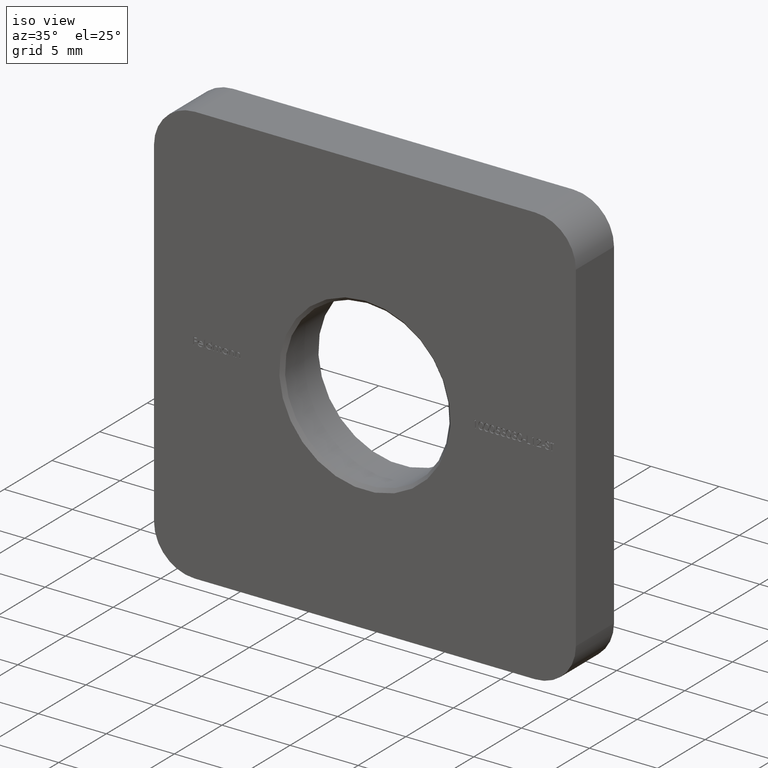
[diagram: clean part render]
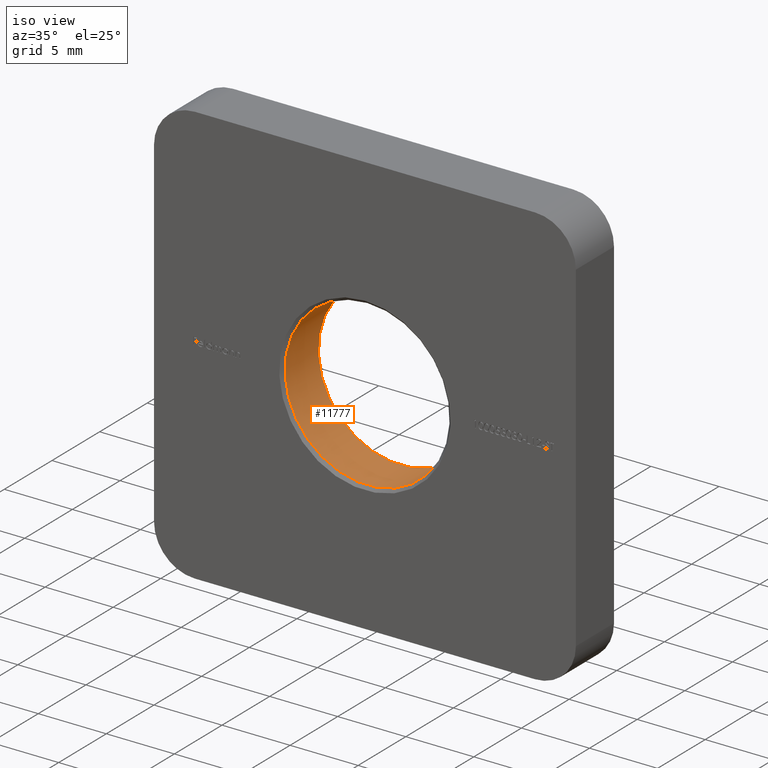
[diagram: same view with one face highlighted and labeled with its STEP entity id]
A machine part, iso view. The second image highlights one B-rep face of the part: STEP entity #11777.
In plain terms, the highlighted cylindrical surface (bore or boss wall) has radius 6.05 mm, axis along (-0, 1, -0).
Its self-contained STEP definition (entity closure, byte-faithful):
#537 = CARTESIAN_POINT ( 'NONE',  ( 0.000000000000000000, 3.749999999999989342, 0.000000000000000000 ) ) ;
#1420 = FACE_OUTER_BOUND ( 'NONE', #14324, .T. ) ;
#1508 = EDGE_LOOP ( 'NONE', ( #8063 ) ) ;
#2715 = CIRCLE ( 'NONE', #11120, 6.049999999999999822 ) ;
#2731 = CARTESIAN_POINT ( 'NONE',  ( 0.000000000000000000, 0.2499999999999932832, 6.049999999999999822 ) ) ;
#2790 = AXIS2_PLACEMENT_3D ( 'NONE', #3466, #6305, #9123 ) ;
#3451 = ORIENTED_EDGE ( 'NONE', *, *, #9138, .T. ) ;
#3466 = CARTESIAN_POINT ( 'NONE',  ( 0.000000000000000000, 0.000000000000000000, 0.000000000000000000 ) ) ;
#4703 = CARTESIAN_POINT ( 'NONE',  ( 0.000000000000000000, 0.2499999999999932832, 0.000000000000000000 ) ) ;
#4843 = DIRECTION ( 'NONE',  ( 0.000000000000000000, 1.000000000000000000, 0.000000000000000000 ) ) ;
#5234 = CIRCLE ( 'NONE', #17295, 6.049999999999999822 ) ;
#6305 = DIRECTION ( 'NONE',  ( -0.000000000000000000, 1.000000000000000000, -0.000000000000000000 ) ) ;
#8063 = ORIENTED_EDGE ( 'NONE', *, *, #12963, .T. ) ;
#8156 = VERTEX_POINT ( 'NONE', #2731 ) ;
#8334 = CARTESIAN_POINT ( 'NONE',  ( 0.000000000000000000, 3.749999999999989342, 6.049999999999999822 ) ) ;
#8677 = CYLINDRICAL_SURFACE ( 'NONE', #2790, 6.049999999999999822 ) ;
#9123 = DIRECTION ( 'NONE',  ( 0.000000000000000000, 0.000000000000000000, 1.000000000000000000 ) ) ;
#9138 = EDGE_CURVE ( 'NONE', #11611, #11611, #5234, .T. ) ;
#10343 = DIRECTION ( 'NONE',  ( 0.000000000000000000, 0.000000000000000000, 1.000000000000000000 ) ) ;
#11120 = AXIS2_PLACEMENT_3D ( 'NONE', #4703, #17231, #11654 ) ;
#11611 = VERTEX_POINT ( 'NONE', #8334 ) ;
#11654 = DIRECTION ( 'NONE',  ( 0.000000000000000000, 0.000000000000000000, 1.000000000000000000 ) ) ;
#11777 = ADVANCED_FACE ( 'NONE', ( #1420, #14987 ), #8677, .F. ) ;
#12963 = EDGE_CURVE ( 'NONE', #8156, #8156, #2715, .T. ) ;
#14324 = EDGE_LOOP ( 'NONE', ( #3451 ) ) ;
#14987 = FACE_OUTER_BOUND ( 'NONE', #1508, .T. ) ;
#17231 = DIRECTION ( 'NONE',  ( -0.000000000000000000, -1.000000000000000000, -0.000000000000000000 ) ) ;
#17295 = AXIS2_PLACEMENT_3D ( 'NONE', #537, #4843, #10343 ) ;